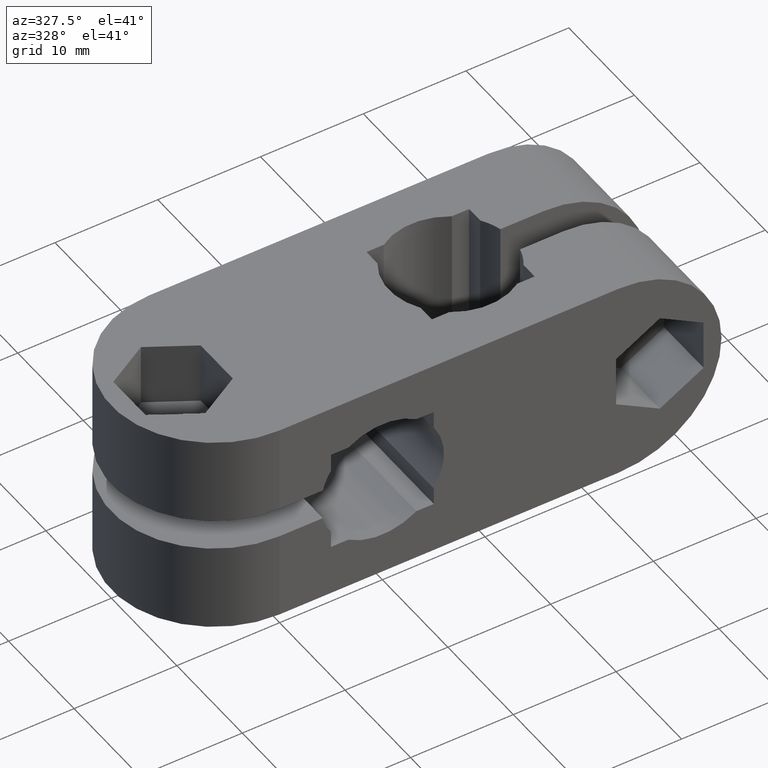
[diagram: clean part render]
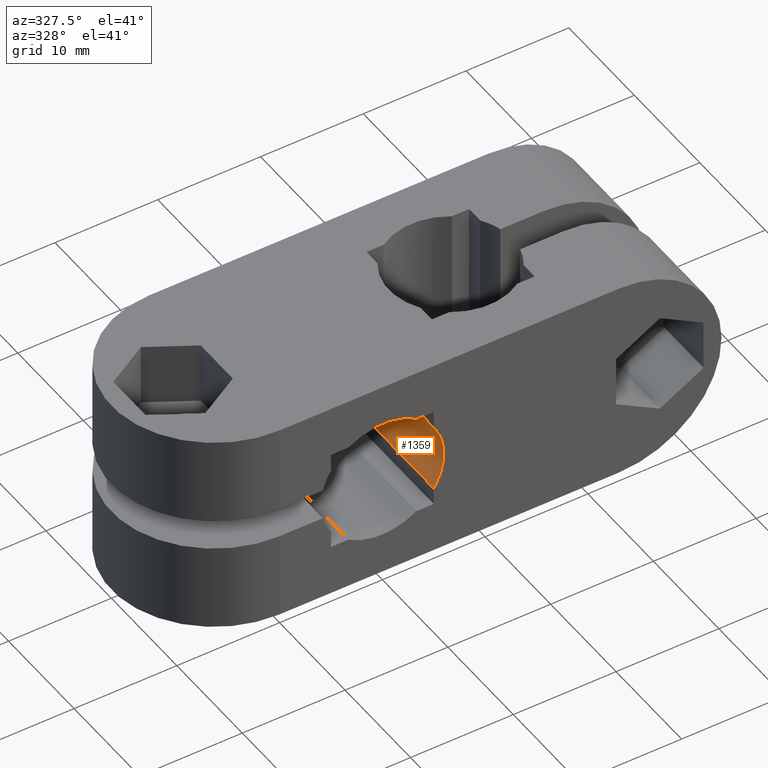
[diagram: same view with one face highlighted and labeled with its STEP entity id]
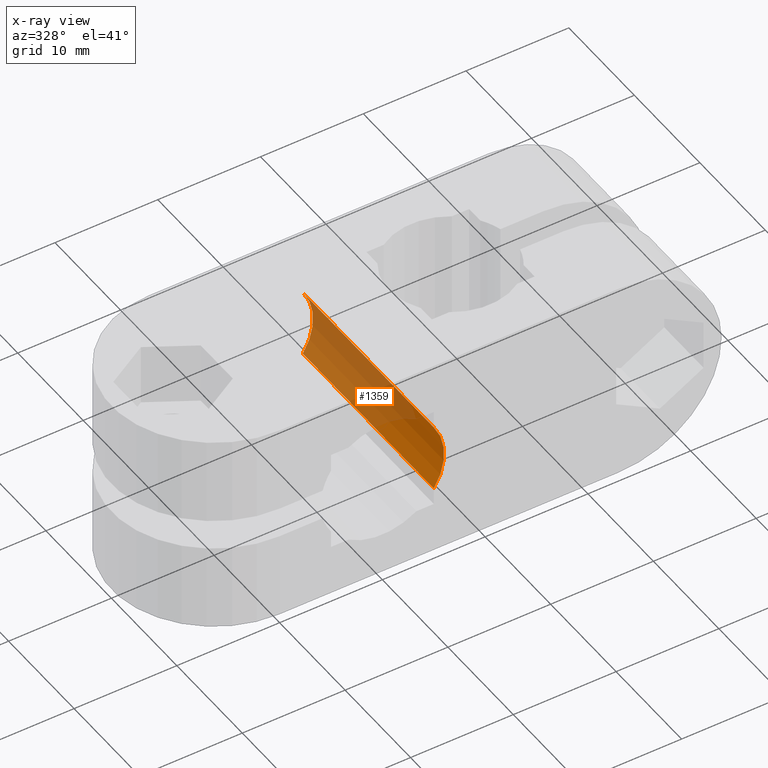
[diagram: x-ray of the same camera — body ghosted, the highlighted face saturated]
A machine part, auxiliary view. The second image highlights one B-rep face of the part: STEP entity #1359.
The next image is the same camera in x-ray: the body ghosted, the highlighted face saturated — about 67% of this face is hidden behind the body in this view.
In plain terms, the highlighted cylindrical surface (partial cylindrical patch) has radius 6 mm, axis along (0, 1, 0).
Its self-contained STEP definition (entity closure, byte-faithful):
#150=CARTESIAN_POINT('',(5.000000000000004,-3.552714E-015,-3.316624790355395));
#151=VERTEX_POINT('',#150);
#158=CARTESIAN_POINT('',(5.000000000000005,-3.552714E-015,3.316624790355391));
#159=VERTEX_POINT('',#158);
#160=CARTESIAN_POINT('',(0.0,0.0,0.0));
#161=DIRECTION('',(1.652425E-016,1.0,0.0));
#162=DIRECTION('',(-1.0,1.652425E-016,0.0));
#163=AXIS2_PLACEMENT_3D('',#160,#161,#162);
#164=CIRCLE('',#163,6.0);
#165=EDGE_CURVE('',#159,#151,#164,.T.);
#453=CARTESIAN_POINT('',(5.000000000000004,-19.999999999999996,3.316624790355389));
#454=VERTEX_POINT('',#453);
#461=CARTESIAN_POINT('',(5.0,-19.999999999999996,-3.316624790355393));
#462=VERTEX_POINT('',#461);
#463=CARTESIAN_POINT('',(-3.552714E-015,-19.999999999999996,0.0));
#464=DIRECTION('',(1.652425E-016,1.0,0.0));
#465=DIRECTION('',(-1.0,1.652425E-016,0.0));
#466=AXIS2_PLACEMENT_3D('',#463,#464,#465);
#467=CIRCLE('',#466,6.0);
#468=EDGE_CURVE('',#454,#462,#467,.T.);
#1338=CARTESIAN_POINT('',(0.0,0.0,0.0));
#1339=DIRECTION('',(1.652425E-016,1.0,0.0));
#1340=DIRECTION('',(-1.0,1.652425E-016,0.0));
#1341=AXIS2_PLACEMENT_3D('',#1338,#1339,#1340);
#1342=CYLINDRICAL_SURFACE('',#1341,6.0);
#1343=ORIENTED_EDGE('',*,*,#165,.T.);
#1344=CARTESIAN_POINT('',(5.000000000000004,-3.552714E-015,-3.316624790355396));
#1345=DIRECTION('',(0.0,-1.0,0.0));
#1346=VECTOR('',#1345,19.999999999999993);
#1347=LINE('',#1344,#1346);
#1348=EDGE_CURVE('',#151,#462,#1347,.T.);
#1349=ORIENTED_EDGE('',*,*,#1348,.T.);
#1350=ORIENTED_EDGE('',*,*,#468,.F.);
#1351=CARTESIAN_POINT('',(5.0,-19.999999999999996,3.316624790355393));
#1352=DIRECTION('',(0.0,1.0,0.0));
#1353=VECTOR('',#1352,19.999999999999993);
#1354=LINE('',#1351,#1353);
#1355=EDGE_CURVE('',#454,#159,#1354,.T.);
#1356=ORIENTED_EDGE('',*,*,#1355,.T.);
#1357=EDGE_LOOP('',(#1343,#1349,#1350,#1356));
#1358=FACE_OUTER_BOUND('',#1357,.T.);
#1359=ADVANCED_FACE('',(#1358),#1342,.F.);